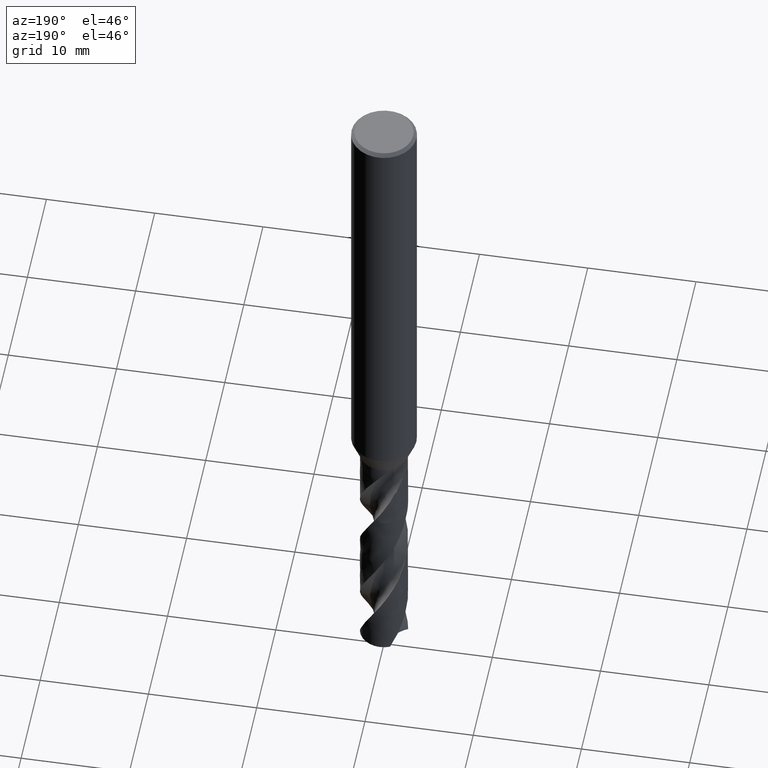
[diagram: clean part render]
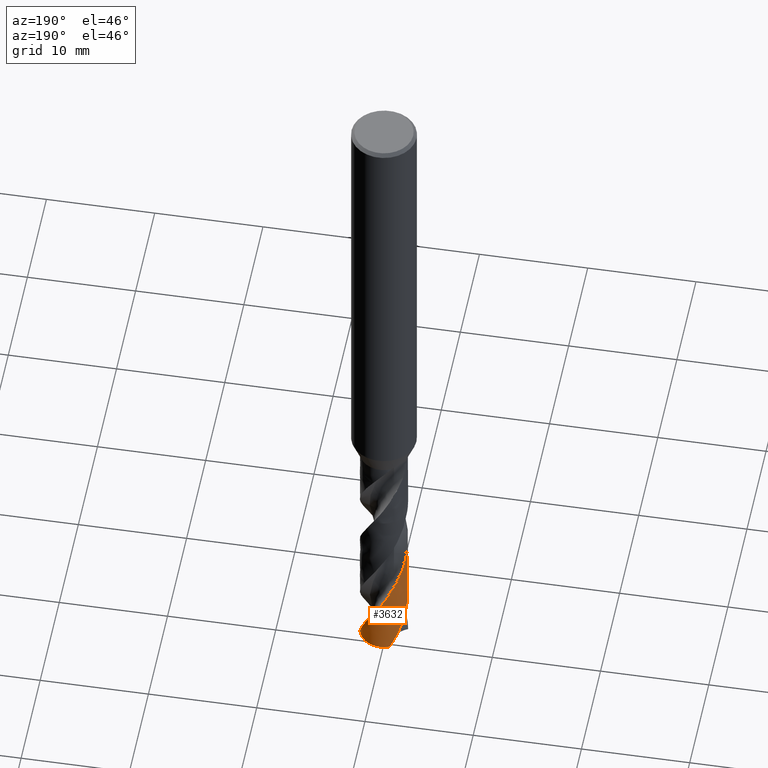
[diagram: same view with one face highlighted and labeled with its STEP entity id]
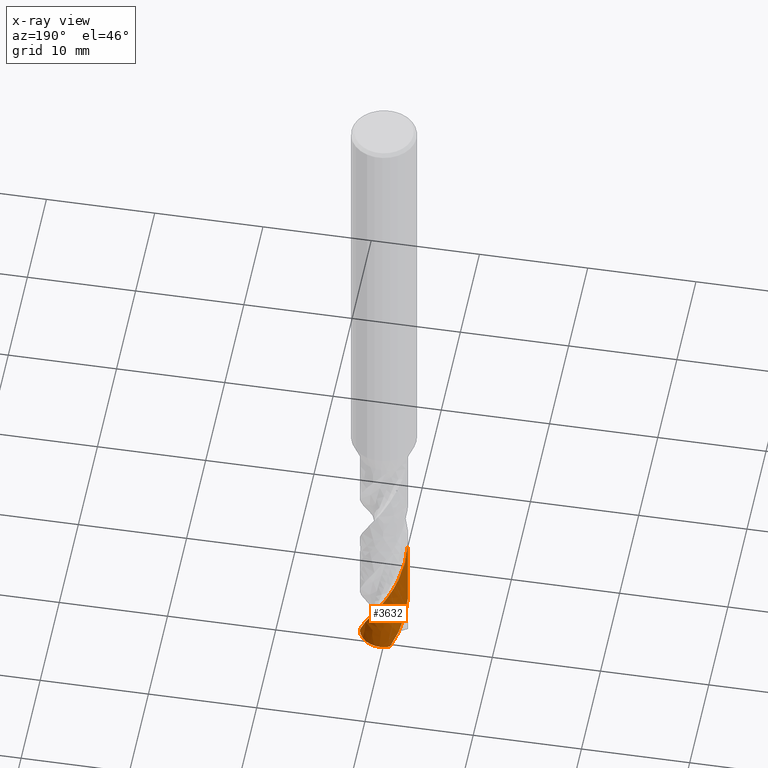
[diagram: x-ray of the same camera — body ghosted, the highlighted face saturated]
A machine part, auxiliary view. The second image highlights one B-rep face of the part: STEP entity #3632.
The next image is the same camera in x-ray: the body ghosted, the highlighted face saturated — about 0% of this face is hidden behind the body in this view.
In plain terms, the highlighted face is a freeform B-spline surface patch.
Its self-contained STEP definition (entity closure, byte-faithful):
#2854 = VERTEX_POINT('', #2855);
#2855 = CARTESIAN_POINT('', (-2.2, 3.85555519846484E-15, -60.7659947855861));
#2961 = EDGE_CURVE('', #2962, #2854, #2964, .T.);
#2962 = VERTEX_POINT('', #2963);
#2963 = CARTESIAN_POINT('', (-0.903567698616244, 2.00588270195876, -65.1992654846144));
#2964 = B_SPLINE_CURVE_WITH_KNOTS('', 3, (#2965, #2966, #2967, #2968, #2969, #2970, #2971, #2972, #2973, #2974, #2975, #2976, #2977, #2978, #2979, #2980, #2981, #2982, #2983, #2984, #2985, #2986, #2987, #2988, #2989, #2990, #2991, #2992, #2993, #2994, #2995, #2996, #2997, #2998, #2999, #3000, #3001), .UNSPECIFIED., .F., .U., (4, 3, 3, 3, 3, 3, 3, 3, 3, 3, 3, 3, 4), (0., 0.44377726134586, 0.887415483092158, 1.33091698785799, 1.77428339848744, 2.21751568883006, 2.66061414246083, 3.10357838543293, 3.54640736915083, 3.9890993549716, 4.43165187915553, 4.87406170375264, 5.10123189628524), .UNSPECIFIED.);
#2965 = CARTESIAN_POINT('', (-0.903567698616243, 2.00588270195876, -65.1992654846144));
#2966 = CARTESIAN_POINT('', (-0.970238236946314, 1.97585036515981, -65.0706765010383));
#2967 = CARTESIAN_POINT('', (-1.03543626537126, 1.94247796973274, -64.9420525050173));
#2968 = CARTESIAN_POINT('', (-1.09879725166999, 1.90594978940225, -64.8134713785292));
#2969 = CARTESIAN_POINT('', (-1.16213838637439, 1.86943305369502, -64.6849305377202));
#2970 = CARTESIAN_POINT('', (-1.2236823297873, 1.8297401909761, -64.5563547660366));
#2971 = CARTESIAN_POINT('', (-1.28308470864693, 1.78709082881549, -64.4278218582606));
#2972 = CARTESIAN_POINT('', (-1.34246878134296, 1.74445461000396, -64.2993285607575));
#2973 = CARTESIAN_POINT('', (-1.39974872185665, 1.69883779901167, -64.1708002159997));
#2974 = CARTESIAN_POINT('', (-1.45460416580697, 1.65049287208913, -64.0423148430673));
#2975 = CARTESIAN_POINT('', (-1.50944290034651, 1.60216267142136, -63.913868607816));
#2976 = CARTESIAN_POINT('', (-1.5618916706565, 1.55107689541345, -63.7853872244103));
#2977 = CARTESIAN_POINT('', (-1.61165717991845, 1.4975183252359, -63.6569488964036));
#2978 = CARTESIAN_POINT('', (-1.66140763489524, 1.44397595676109, -63.5285494215553));
#2979 = CARTESIAN_POINT('', (-1.70850623629578, 1.38793024347565, -63.4001147248579));
#2980 = CARTESIAN_POINT('', (-1.75268953951592, 1.32969145972722, -63.2717231444577));
#2981 = CARTESIAN_POINT('', (-1.79685950131633, 1.27147026153716, -63.1433703326836));
#2982 = CARTESIAN_POINT('', (-1.83814223535631, 1.21102264166042, -63.0149822480254));
#2983 = CARTESIAN_POINT('', (-1.87630665592476, 1.1486833040192, -62.886637315443));
#2984 = CARTESIAN_POINT('', (-1.91445951682293, 1.08636284841987, -62.7583312574218));
#2985 = CARTESIAN_POINT('', (-1.94951860833566, 1.02211481462778, -62.6299898997541));
#2986 = CARTESIAN_POINT('', (-1.98128740620527, 0.956295045481469, -62.5016917081175));
#2987 = CARTESIAN_POINT('', (-2.01304650346367, 0.890495374419886, -62.3734326923693));
#2988 = CARTESIAN_POINT('', (-2.04153614715973, 0.823085907676162, -62.245138370442));
#2989 = CARTESIAN_POINT('', (-2.0665962564124, 0.754440132139271, -62.1168872085901));
#2990 = CARTESIAN_POINT('', (-2.09164861282504, 0.685815593529593, -61.9886757237695));
#2991 = CARTESIAN_POINT('', (-2.11328841061231, 0.61591480934537, -61.8604289446181));
#2992 = CARTESIAN_POINT('', (-2.13139355102244, 0.545125243095674, -61.7322253023063));
#2993 = CARTESIAN_POINT('', (-2.14949298775462, 0.474357977743887, -61.6040620480982));
#2994 = CARTESIAN_POINT('', (-2.16407073785406, 0.402660458072204, -61.4758635271464));
#2995 = CARTESIAN_POINT('', (-2.17504386309857, 0.330430315796948, -61.3477081048893));
#2996 = CARTESIAN_POINT('', (-2.1860134500954, 0.258223463890392, -61.2195940059212));
#2997 = CARTESIAN_POINT('', (-2.19338726062267, 0.185441339708389, -61.0914446810448));
#2998 = CARTESIAN_POINT('', (-2.19712231988703, 0.112487828031402, -60.9633384043763));
#2999 = CARTESIAN_POINT('', (-2.19904021159067, 0.0750273957078609, -60.8975579313457));
#3000 = CARTESIAN_POINT('', (-2.2, 0.0375130244198345, -60.8317732465704));
#3001 = CARTESIAN_POINT('', (-2.2, 3.73749871089186E-15, -60.7659947855861));
#3140 = VERTEX_POINT('', #3141);
#3141 = CARTESIAN_POINT('', (-2.2, 3.43718038008389E-15, -53.9334154872571));
#3178 = EDGE_CURVE('', #3140, #2854, #3179, .T.);
#3179 = LINE('', #3180, #3181);
#3180 = CARTESIAN_POINT('', (-2.2, 3.43718038008389E-15, -53.9334154872571));
#3181 = VECTOR('', #3182, 6.83257929832901);
#3182 = DIRECTION('', (0., 4.18374818380954E-16, -6.83257929832901));
#3202 = VERTEX_POINT('', #3203);
#3203 = CARTESIAN_POINT('', (2.14576266282893, 0.485492116114479, -65.1992654846144));
#3306 = EDGE_CURVE('', #3307, #3202, #3309, .T.);
#3307 = VERTEX_POINT('', #3308);
#3308 = CARTESIAN_POINT('', (2.03778709982186, 0.829110207270193, -64.5628445858138));
#3309 = B_SPLINE_CURVE_WITH_KNOTS('', 3, (#3310, #3311, #3312, #3313, #3314, #3315, #3316), .UNSPECIFIED., .F., .U., (4, 3, 4), (0., 0.442750760719499, 0.731417833529549), .UNSPECIFIED.);
#3310 = CARTESIAN_POINT('', (2.03778709982186, 0.829110207270201, -64.5628445858138));
#3311 = CARTESIAN_POINT('', (2.06521101712031, 0.761707702262608, -64.6912414167829));
#3312 = CARTESIAN_POINT('', (2.0892911430374, 0.692932198530397, -64.8196822993556));
#3313 = CARTESIAN_POINT('', (2.10989788075364, 0.623162043766197, -64.9480894759038));
#3314 = CARTESIAN_POINT('', (2.12333317479367, 0.577672915046111, -65.031809092154));
#3315 = CARTESIAN_POINT('', (2.13529717049543, 0.531747167333576, -65.1155416181862));
#3316 = CARTESIAN_POINT('', (2.14576266282893, 0.485492116114475, -65.1992654846144));
#3604 = EDGE_CURVE('', #2962, #3202, #3605, .T.);
#3605 = CIRCLE('', #3606, 2.20000000000001);
#3606 = AXIS2_PLACEMENT_3D('', #3607, #3608, #3609);
#3607 = CARTESIAN_POINT('', (2.44458090582295E-31, 3.99230358912457E-15, -65.1992654846144));
#3608 = DIRECTION('', (3.74939945665464E-33, 6.12323399573677E-17, -1.));
#3609 = DIRECTION('', (-1., 6.12323399573677E-17, 0.));
#3632 = ADVANCED_FACE('', (#3633), #3733, .T.);
#3633 = FACE_OUTER_BOUND('', #3634, .T.);
#3634 = EDGE_LOOP('', (#3635, #3636, #3637, #3731, #3732));
#3635 = ORIENTED_EDGE('', *, *, #2961, .T.);
#3636 = ORIENTED_EDGE('', *, *, #3178, .F.);
#3637 = ORIENTED_EDGE('', *, *, #3638, .F.);
#3638 = EDGE_CURVE('', #3307, #3140, #3639, .T.);
#3639 = B_SPLINE_CURVE_WITH_KNOTS('', 3, (#3640, #3641, #3642, #3643, #3644, #3645, #3646, #3647, #3648, #3649, #3650, #3651, #3652, #3653, #3654, #3655, #3656, #3657, #3658, #3659, #3660, #3661, #3662, #3663, #3664, #3665, #3666, #3667, #3668, #3669, #3670, #3671, #3672, #3673, #3674, #3675, #3676, #3677, #3678, #3679, #3680, #3681, #3682, #3683, #3684, #3685, #3686, #3687, #3688, #3689, #3690, #3691, #3692, #3693, #3694, #3695, #3696, #3697, #3698, #3699, #3700, #3701, #3702, #3703, #3704, #3705, #3706, #3707, #3708, #3709, #3710, #3711, #3712, #3713, #3714, #3715, #3716, #3717, #3718, #3719, #3720, #3721, #3722, #3723, #3724, #3725, #3726, #3727, #3728, #3729, #3730), .UNSPECIFIED., .F., .U., (4, 3, 3, 3, 3, 3, 3, 3, 3, 3, 3, 3, 3, 3, 3, 3, 3, 3, 3, 3, 3, 3, 3, 3, 3, 3, 3, 3, 3, 3, 4), (0., 0.44382649252557, 0.887514314546197, 1.33106595332782, 1.77448316250864, 2.21776700278262, 2.66091786539229, 3.10393548226171, 3.5468189236025, 3.98956658179645, 4.43217614172001, 4.87464453585402, 5.16976751842526, 5.25730345369754, 5.29622460374464, 5.74063618736288, 6.18488817041597, 6.62898669934316, 7.07293683384939, 7.51674266650728, 7.96040741511669, 8.40393349621527, 8.84732257921869, 9.29057562374893, 9.73369290187024, 10.1766740062515, 10.6195178446522, 11.0622226205397, 11.5047857990448, 11.9472040568025, 12.2350422721279), .UNSPECIFIED.);
#3640 = CARTESIAN_POINT('', (2.03778709982186, 0.829110207270193, -64.5628445858138));
#3641 = CARTESIAN_POINT('', (2.01029655185283, 0.896676477142532, -64.4341357947825));
#3642 = CARTESIAN_POINT('', (1.97942879093753, 0.962905096280182, -64.3053950137435));
#3643 = CARTESIAN_POINT('', (1.94535104140579, 1.02742850150336, -64.1767003320116));
#3644 = CARTESIAN_POINT('', (1.91128393923019, 1.09193174683673, -64.048045860039));
#3645 = CARTESIAN_POINT('', (1.87398895224314, 1.15476849178487, -63.9193594459298));
#3646 = CARTESIAN_POINT('', (1.83366914819439, 1.21558934470489, -63.790719069223));
#3647 = CARTESIAN_POINT('', (1.79336171969719, 1.27639152958774, -63.6621181767263));
#3648 = CARTESIAN_POINT('', (1.75000763524793, 1.33521477287427, -63.533485391252));
#3649 = CARTESIAN_POINT('', (1.70384387076588, 1.39173131891668, -63.4048985688252));
#3650 = CARTESIAN_POINT('', (1.6576940973863, 1.44823073618297, -63.2763507179041));
#3651 = CARTESIAN_POINT('', (1.60870901831569, 1.50245828286134, -63.1477710348333));
#3652 = CARTESIAN_POINT('', (1.55715725278199, 1.55411109323255, -63.0192372324233));
#3653 = CARTESIAN_POINT('', (1.50562099274169, 1.60574836771856, -62.8907420897955));
#3654 = CARTESIAN_POINT('', (1.45148883442953, 1.65484324421202, -62.762215180134));
#3655 = CARTESIAN_POINT('', (1.39505844771998, 1.70112078567195, -62.6337340667108));
#3656 = CARTESIAN_POINT('', (1.33864498917323, 1.74738444465113, -62.5052914954514));
#3657 = CARTESIAN_POINT('', (1.27990075020172, 1.79086026070057, -62.3768172234866));
#3658 = CARTESIAN_POINT('', (1.21914955803508, 1.83130400402087, -62.2483886642186));
#3659 = CARTESIAN_POINT('', (1.15841663241886, 1.87173558679502, -62.1199987206003));
#3660 = CARTESIAN_POINT('', (1.09564115395156, 1.90916140146849, -61.9915771389474));
#3661 = CARTESIAN_POINT('', (1.0311699320164, 1.94337041536227, -61.8632011923201));
#3662 = CARTESIAN_POINT('', (0.966718236303131, 1.97756906846598, -61.7348641265631));
#3663 = CARTESIAN_POINT('', (0.900532491890874, 2.00857372012691, -61.6064954774406));
#3664 = CARTESIAN_POINT('', (0.832979062216449, 2.03620870293521, -61.4781723958615));
#3665 = CARTESIAN_POINT('', (0.765446343673678, 2.06383521316453, -61.3498886567148));
#3666 = CARTESIAN_POINT('', (0.696505319780467, 2.08811106424569, -61.2215733760465));
#3667 = CARTESIAN_POINT('', (0.626538256891893, 2.10889777197736, -61.0933036104619));
#3668 = CARTESIAN_POINT('', (0.556593017563965, 2.12967799608719, -60.9650738537457));
#3669 = CARTESIAN_POINT('', (0.485579242038087, 2.14698405565211, -60.8368125796299));
#3670 = CARTESIAN_POINT('', (0.413891260234781, 2.16071609072126, -60.7085967880751));
#3671 = CARTESIAN_POINT('', (0.342226142579627, 2.17444374609836, -60.5804218896349));
#3672 = CARTESIAN_POINT('', (0.269842925153024, 2.18460813683975, -60.4522154750423));
#3673 = CARTESIAN_POINT('', (0.197144011690371, 2.19114906810463, -60.3240545355936));
#3674 = CARTESIAN_POINT('', (0.14865440100806, 2.19551181845985, -60.23857218431));
#3675 = CARTESIAN_POINT('', (0.100007764516592, 2.19826518162879, -60.1530814880669));
#3676 = CARTESIAN_POINT('', (0.0513243885021818, 2.19940123832487, -60.0676054879805));
#3677 = CARTESIAN_POINT('', (0.0368844935997062, 2.19973820220531, -60.0422525942624));
#3678 = CARTESIAN_POINT('', (0.022440634456045, 2.19993296910795, -60.0168996693571));
#3679 = CARTESIAN_POINT('', (0.00799598538939803, 2.19998546909239, -59.991547298927));
#3680 = CARTESIAN_POINT('', (0.00157345329498567, 2.20000881218875, -59.9802748608078));
#3681 = CARTESIAN_POINT('', (-0.00484928351256827, 2.2000040309523, -59.9690024459956));
#3682 = CARTESIAN_POINT('', (-0.0112719522731553, 2.19997112324048, -59.9577301096083));
#3683 = CARTESIAN_POINT('', (-0.0846076165968927, 2.19959537462294, -59.8290197077086));
#3684 = CARTESIAN_POINT('', (-0.157959612100976, 2.19554791620518, -59.7002771114901));
#3685 = CARTESIAN_POINT('', (-0.230915758682731, 2.18784778090072, -59.5715808139589));
#3686 = CARTESIAN_POINT('', (-0.303845704682289, 2.18015041092911, -59.442930734849));
#3687 = CARTESIAN_POINT('', (-0.376425040681897, 2.1687982487287, -59.3142483344606));
#3688 = CARTESIAN_POINT('', (-0.448245961084257, 2.15385133153887, -59.185612357992));
#3689 = CARTESIAN_POINT('', (-0.520042073006337, 2.13890957733357, -59.0570208151378));
#3690 = CARTESIAN_POINT('', (-0.591124130517745, 2.1203664358799, -58.9283968011857));
#3691 = CARTESIAN_POINT('', (-0.661092798168547, 2.09832226128632, -58.7998193439347));
#3692 = CARTESIAN_POINT('', (-0.731038085962752, 2.07628545269896, -58.6712848505218));
#3693 = CARTESIAN_POINT('', (-0.799913051996276, 2.05073662091148, -58.5427177553406));
#3694 = CARTESIAN_POINT('', (-0.867330712750313, 2.02181538096832, -58.4141973246191));
#3695 = CARTESIAN_POINT('', (-0.934726460022852, 1.99290354160432, -58.2857186682643));
#3696 = CARTESIAN_POINT('', (-1.0007063576515, 1.96060410967043, -58.1572073118487));
#3697 = CARTESIAN_POINT('', (-1.06489950759281, 1.92509455319177, -58.0287426970948));
#3698 = CARTESIAN_POINT('', (-1.12907225079583, 1.88959628505503, -57.9003189207134));
#3699 = CARTESIAN_POINT('', (-1.19149778863013, 1.85086868499619, -57.7718623757194));
#3700 = CARTESIAN_POINT('', (-1.25182490244706, 1.80912531727722, -57.6434526216469));
#3701 = CARTESIAN_POINT('', (-1.31213316101184, 1.76739499645665, -57.5150830020702));
#3702 = CARTESIAN_POINT('', (-1.37038032679256, 1.72262586218008, -57.3866805722976));
#3703 = CARTESIAN_POINT('', (-1.42623828209166, 1.67506548012197, -57.2583249575179));
#3704 = CARTESIAN_POINT('', (-1.48207898376397, 1.62751978870332, -57.1300089897296));
#3705 = CARTESIAN_POINT('', (-1.53556530023053, 1.57715616706315, -57.001660194232));
#3706 = CARTESIAN_POINT('', (-1.58639543153764, 1.52425376325483, -56.8733582154952));
#3707 = CARTESIAN_POINT('', (-1.63720996739209, 1.4713675907037, -56.745095601745));
#3708 = CARTESIAN_POINT('', (-1.68540034653513, 1.41591254001129, -56.6168001638184));
#3709 = CARTESIAN_POINT('', (-1.73069406704317, 1.35819661548009, -56.4885515251304));
#3710 = CARTESIAN_POINT('', (-1.77597391428885, 1.30049836907634, -56.3603421684223));
#3711 = CARTESIAN_POINT('', (-1.81838605002606, 1.24050598765571, -56.232100008968));
#3712 = CARTESIAN_POINT('', (-1.85768998339599, 1.17855331894243, -56.1039046150838));
#3713 = CARTESIAN_POINT('', (-1.8969818383301, 1.11661968881559, -55.9757486167436));
#3714 = CARTESIAN_POINT('', (-1.93319108216719, 1.05268962196378, -55.8475598517063));
#3715 = CARTESIAN_POINT('', (-1.96611165150741, 0.987119533697331, -55.7194178057008));
#3716 = CARTESIAN_POINT('', (-1.99902201979348, 0.921569763549142, -55.591315466905));
#3717 = CARTESIAN_POINT('', (-2.02866568911171, 0.854341242565668, -55.4631804086641));
#3718 = CARTESIAN_POINT('', (-2.05487311561232, 0.785809441743856, -55.3350920134658));
#3719 = CARTESIAN_POINT('', (-2.08107231241597, 0.717299161385075, -55.2070438407851));
#3720 = CARTESIAN_POINT('', (-2.10385338662098, 0.647444633119065, -55.0789630035512));
#3721 = CARTESIAN_POINT('', (-2.12308505615576, 0.576636665785596, -54.9509287674897));
#3722 = CARTESIAN_POINT('', (-2.14231057451664, 0.505851346102151, -54.8229354826753));
#3723 = CARTESIAN_POINT('', (-2.15800074034035, 0.434069755673192, -54.6949095921145));
#3724 = CARTESIAN_POINT('', (-2.17006390261864, 0.361694150563967, -54.5669302387116));
#3725 = CARTESIAN_POINT('', (-2.18212311472081, 0.289342245408335, -54.4389927931412));
#3726 = CARTESIAN_POINT('', (-2.19056512843472, 0.216352038336804, -54.3110228006424));
#3727 = CARTESIAN_POINT('', (-2.19533889992902, 0.143133205301502, -54.1830992830629));
#3728 = CARTESIAN_POINT('', (-2.19844472534014, 0.0954968841064559, -54.0998719832112));
#3729 = CARTESIAN_POINT('', (-2.2, 0.0477477923992751, -54.0166368607742));
#3730 = CARTESIAN_POINT('', (-2.2, -9.03097756810081E-16, -53.9334154872571));
#3731 = ORIENTED_EDGE('', *, *, #3306, .T.);
#3732 = ORIENTED_EDGE('', *, *, #3604, .F.);
#3733 = (
   BOUNDED_SURFACE ()
   B_SPLINE_SURFACE (2, 1, ((#3734, #3735), (#3736, #3737), (#3738, #3739), (#3740, #3741), (#3742, #3743)), .UNSPECIFIED., .F., .F., .U.)
   B_SPLINE_SURFACE_WITH_KNOTS ((3, 2, 3), (2, 2), (0., 3.45575191894877, 6.38967491407626), (0.514387642797193, 1.), .UNSPECIFIED.)
   GEOMETRIC_REPRESENTATION_ITEM ()
   RATIONAL_B_SPLINE_SURFACE (((1., 1.), (0.707106781186548, 0.707106781186548), (1., 1.), (0.751334537331286, 0.751334537331286), (0.924901535862904, 0.924901535862904)))
   REPRESENTATION_ITEM ('')
   SURFACE ()
);
#3734 = CARTESIAN_POINT('', (-2.2, 3.43718038008389E-15, -53.9334154872571));
#3735 = CARTESIAN_POINT('', (-2.2, 4.12701473703078E-15, -65.1992654846144));
#3736 = CARTESIAN_POINT('', (-2.2, 2.2, -53.9334154872571));
#3737 = CARTESIAN_POINT('', (-2.2, 2.2, -65.1992654846144));
#3738 = CARTESIAN_POINT('', (1.72563323017096E-31, 2.2, -53.9334154872571));
#3739 = CARTESIAN_POINT('', (2.2186712959341E-31, 2.2, -65.1992654846144));
#3740 = CARTESIAN_POINT('', (1.75784461622393, 2.2, -53.9334154872571));
#3741 = CARTESIAN_POINT('', (1.75784461622393, 2.2, -65.1992654846144));
#3742 = CARTESIAN_POINT('', (2.14576266282893, 0.485492116114475, -53.9334154872571));
#3743 = CARTESIAN_POINT('', (2.14576266282893, 0.485492116114475, -65.1992654846144));